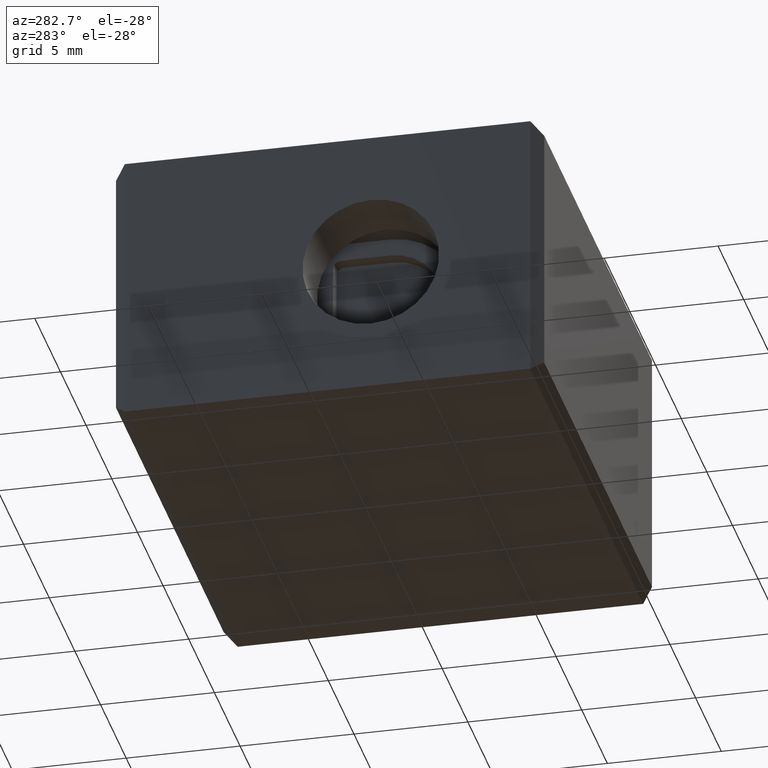
[diagram: clean part render]
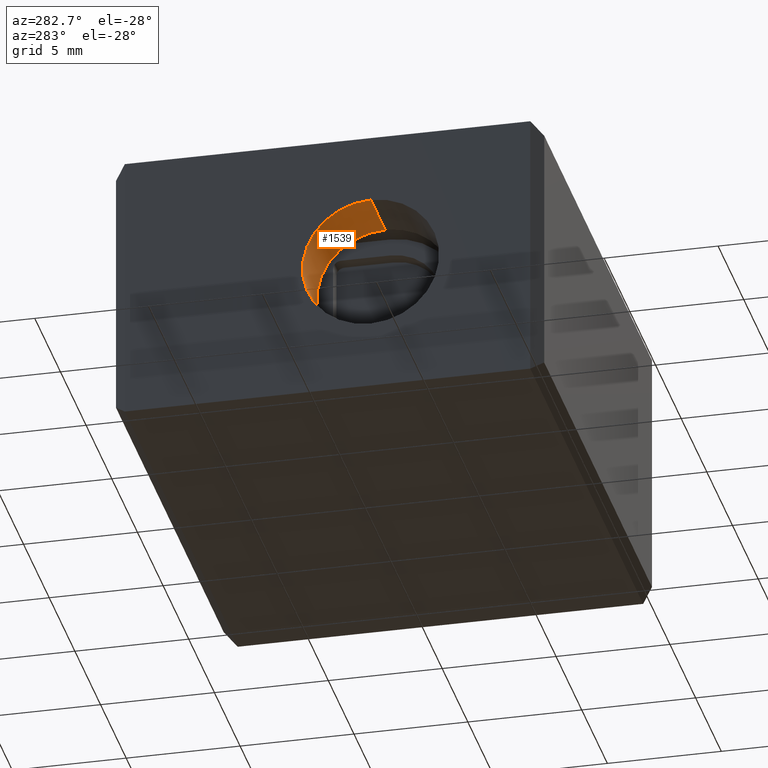
[diagram: same view with one face highlighted and labeled with its STEP entity id]
A machine part, auxiliary view. The second image highlights one B-rep face of the part: STEP entity #1539.
In plain terms, the highlighted cylindrical surface (partial cylindrical patch) has radius 3 mm, axis along (-1, -0, -0).
Its self-contained STEP definition (entity closure, byte-faithful):
#75 = LINE ( 'NONE', #118, #1116 ) ;
#105 = DIRECTION ( 'NONE',  ( -1.000000000000000000, -0.0000000000000000000, -0.0000000000000000000 ) ) ;
#118 = CARTESIAN_POINT ( 'NONE',  ( 2.799999999999999800, 7.500000000000000000, -8.999999999999998200 ) ) ;
#174 = EDGE_LOOP ( 'NONE', ( #716, #691, #737, #661 ) ) ;
#259 = VERTEX_POINT ( 'NONE', #865 ) ;
#278 = VERTEX_POINT ( 'NONE', #817 ) ;
#295 = VERTEX_POINT ( 'NONE', #867 ) ;
#296 = VERTEX_POINT ( 'NONE', #857 ) ;
#661 = ORIENTED_EDGE ( 'NONE', *, *, #1382, .T. ) ;
#691 = ORIENTED_EDGE ( 'NONE', *, *, #1356, .F. ) ;
#716 = ORIENTED_EDGE ( 'NONE', *, *, #1272, .F. ) ;
#737 = ORIENTED_EDGE ( 'NONE', *, *, #1328, .T. ) ;
#817 = CARTESIAN_POINT ( 'NONE',  ( 0.0000000000000000000, 7.500000000000000000, -8.999999999999998200 ) ) ;
#857 = CARTESIAN_POINT ( 'NONE',  ( 2.799999999999999800, 7.500000000000000000, -8.999999999999998200 ) ) ;
#865 = CARTESIAN_POINT ( 'NONE',  ( 0.0000000000000000000, 7.500000000000000000, -2.999999999999996000 ) ) ;
#867 = CARTESIAN_POINT ( 'NONE',  ( 2.799999999999999800, 7.500000000000000000, -2.999999999999996000 ) ) ;
#903 = AXIS2_PLACEMENT_3D ( 'NONE', #2018, #1980, #2013 ) ;
#1005 = AXIS2_PLACEMENT_3D ( 'NONE', #2603, #2604, #2605 ) ;
#1116 = VECTOR ( 'NONE', #105, 1000.000000000000000 ) ;
#1178 = VECTOR ( 'NONE', #1807, 1000.000000000000000 ) ;
#1215 = CIRCLE ( 'NONE', #903, 3.000000000000000400 ) ;
#1239 = CIRCLE ( 'NONE', #1252, 3.000000000000000400 ) ;
#1252 = AXIS2_PLACEMENT_3D ( 'NONE', #1914, #1913, #1915 ) ;
#1272 = EDGE_CURVE ( 'NONE', #296, #278, #75, .T. ) ;
#1328 = EDGE_CURVE ( 'NONE', #295, #259, #1824, .T. ) ;
#1356 = EDGE_CURVE ( 'NONE', #295, #296, #1239, .T. ) ;
#1382 = EDGE_CURVE ( 'NONE', #259, #278, #1215, .T. ) ;
#1539 = ADVANCED_FACE ( 'NONE', ( #2602 ), #2600, .F. ) ;
#1807 = DIRECTION ( 'NONE',  ( -1.000000000000000000, -0.0000000000000000000, -0.0000000000000000000 ) ) ;
#1824 = LINE ( 'NONE', #1843, #1178 ) ;
#1843 = CARTESIAN_POINT ( 'NONE',  ( 2.799999999999999800, 7.500000000000000000, -2.999999999999996000 ) ) ;
#1913 = DIRECTION ( 'NONE',  ( -1.000000000000000000, -0.0000000000000000000, -0.0000000000000000000 ) ) ;
#1914 = CARTESIAN_POINT ( 'NONE',  ( 2.799999999999999800, 7.500000000000000000, -5.999999999999996400 ) ) ;
#1915 = DIRECTION ( 'NONE',  ( 0.0000000000000000000, 0.0000000000000000000, 1.000000000000000000 ) ) ;
#1980 = DIRECTION ( 'NONE',  ( -1.000000000000000000, -0.0000000000000000000, -0.0000000000000000000 ) ) ;
#2013 = DIRECTION ( 'NONE',  ( 0.0000000000000000000, 0.0000000000000000000, 1.000000000000000000 ) ) ;
#2018 = CARTESIAN_POINT ( 'NONE',  ( 0.0000000000000000000, 7.500000000000000000, -5.999999999999996400 ) ) ;
#2600 = CYLINDRICAL_SURFACE ( 'NONE', #1005, 3.000000000000000400 ) ;
#2602 = FACE_OUTER_BOUND ( 'NONE', #174, .T. ) ;
#2603 = CARTESIAN_POINT ( 'NONE',  ( 2.799999999999999800, 7.500000000000000000, -5.999999999999996400 ) ) ;
#2604 = DIRECTION ( 'NONE',  ( -1.000000000000000000, -0.0000000000000000000, -0.0000000000000000000 ) ) ;
#2605 = DIRECTION ( 'NONE',  ( 0.0000000000000000000, 0.0000000000000000000, 1.000000000000000000 ) ) ;